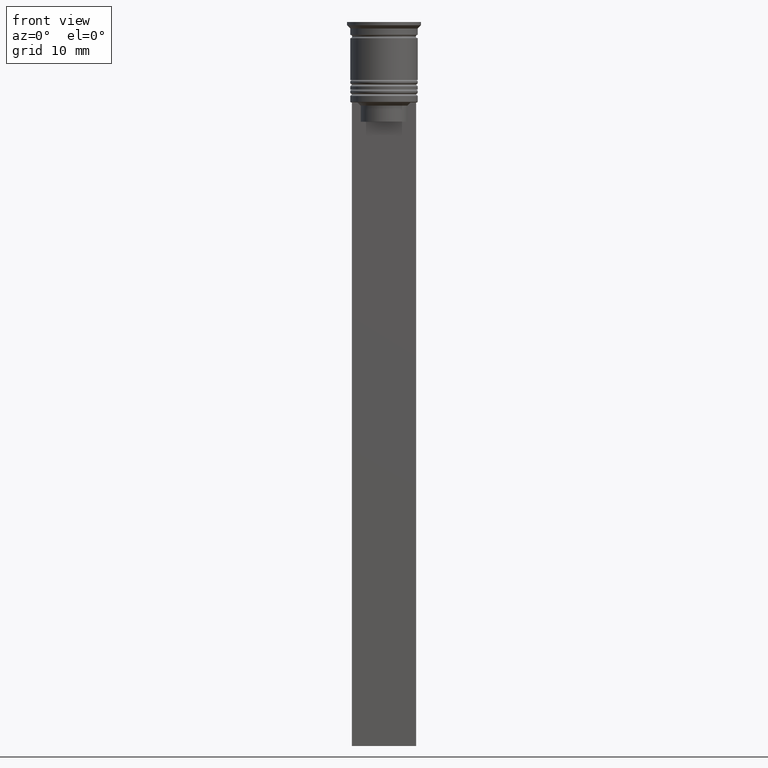
[diagram: clean part render]
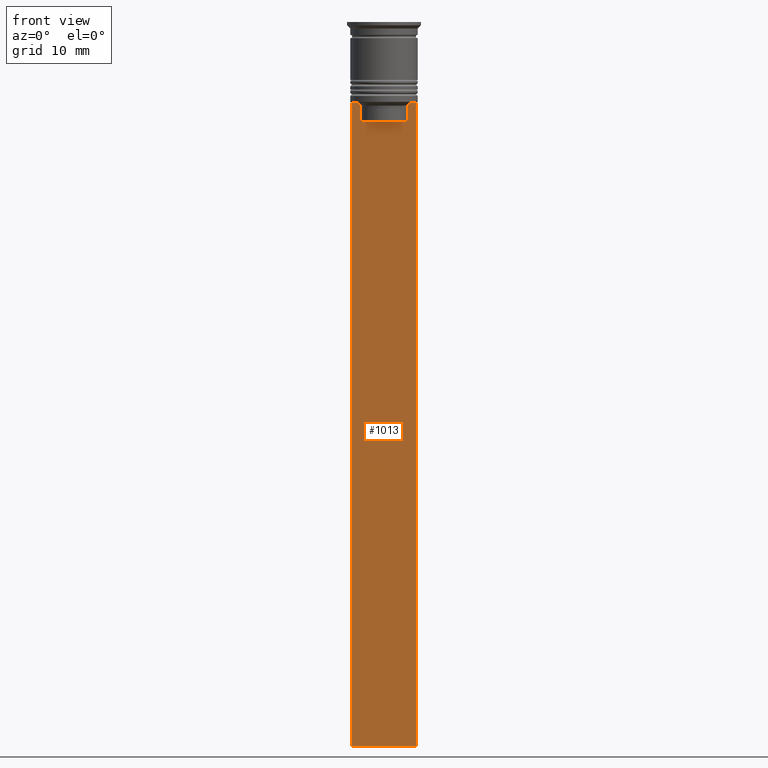
[diagram: same view with one face highlighted and labeled with its STEP entity id]
A machine part, front view. The second image highlights one B-rep face of the part: STEP entity #1013.
In plain terms, the highlighted planar face has unit normal (0, -1, -0).
Its self-contained STEP definition (entity closure, byte-faithful):
#28 = ORIENTED_EDGE ( 'NONE', *, *, #244, .F. ) ;
#42 = CARTESIAN_POINT ( 'NONE',  ( -3.951794205566887985, -0.5000000000000008882, -12.66675159355373914 ) ) ;
#55 = CARTESIAN_POINT ( 'NONE',  ( -4.119769411022908834, -0.5000000000000008882, -12.50000000000000000 ) ) ;
#144 = VERTEX_POINT ( 'NONE', #1088 ) ;
#150 = DIRECTION ( 'NONE',  ( 0.000000000000000000, 0.000000000000000000, -1.000000000000000000 ) ) ;
#169 = ORIENTED_EDGE ( 'NONE', *, *, #1651, .F. ) ;
#172 = CARTESIAN_POINT ( 'NONE',  ( 5.000000000000000000, -0.5000000000000008882, -112.5000000000000000 ) ) ;
#178 = DIRECTION ( 'NONE',  ( 1.000000000000000000, 0.000000000000000000, 0.000000000000000000 ) ) ;
#187 = LINE ( 'NONE', #1621, #1868 ) ;
#188 = CARTESIAN_POINT ( 'NONE',  ( 3.615591237958188042, -0.5000000000000008882, -13.00000000000000178 ) ) ;
#195 = CARTESIAN_POINT ( 'NONE',  ( -3.783746449387932476, -0.5000000000000008882, -12.83342999751715752 ) ) ;
#219 = LINE ( 'NONE', #789, #1134 ) ;
#229 = CARTESIAN_POINT ( 'NONE',  ( 4.119769411022908834, -0.5000000000000008882, -12.50000000000000000 ) ) ;
#232 = CARTESIAN_POINT ( 'NONE',  ( 5.000000000000000000, -0.5000000000000008882, -12.50000000000000000 ) ) ;
#242 = DIRECTION ( 'NONE',  ( 1.000000000000000000, 0.000000000000000000, 0.000000000000000000 ) ) ;
#244 = EDGE_CURVE ( 'NONE', #1767, #1297, #219, .T. ) ;
#249 = CARTESIAN_POINT ( 'NONE',  ( -4.119769411022908834, -0.5000000000000008882, -12.50000000000000000 ) ) ;
#253 = DIRECTION ( 'NONE',  ( 0.000000000000000000, 0.000000000000000000, -1.000000000000000000 ) ) ;
#258 = CARTESIAN_POINT ( 'NONE',  ( 5.000000000000000000, -0.5000000000000008882, -12.50000000000000000 ) ) ;
#263 = ORIENTED_EDGE ( 'NONE', *, *, #1837, .F. ) ;
#330 = LINE ( 'NONE', #172, #650 ) ;
#333 = PLANE ( 'NONE',  #838 ) ;
#344 = DIRECTION ( 'NONE',  ( 0.000000000000000000, 0.000000000000000000, -1.000000000000000000 ) ) ;
#351 = VECTOR ( 'NONE', #748, 1000.000000000000000 ) ;
#389 = CARTESIAN_POINT ( 'NONE',  ( 4.119769411022908834, -0.5000000000000008882, -12.50000000000000000 ) ) ;
#391 = VECTOR ( 'NONE', #242, 1000.000000000000000 ) ;
#430 = VECTOR ( 'NONE', #344, 1000.000000000000000 ) ;
#522 = EDGE_CURVE ( 'NONE', #672, #1757, #678, .T. ) ;
#638 = LINE ( 'NONE', #258, #1070 ) ;
#650 = VECTOR ( 'NONE', #856, 1000.000000000000000 ) ;
#655 = ORIENTED_EDGE ( 'NONE', *, *, #1017, .F. ) ;
#672 = VERTEX_POINT ( 'NONE', #232 ) ;
#674 = CARTESIAN_POINT ( 'NONE',  ( -3.615591237958188486, -0.5000000000000008882, -15.50000000000000000 ) ) ;
#675 = VERTEX_POINT ( 'NONE', #249 ) ;
#678 = LINE ( 'NONE', #1971, #430 ) ;
#691 = DIRECTION ( 'NONE',  ( 0.000000000000000000, 0.000000000000000000, -1.000000000000000000 ) ) ;
#694 = VERTEX_POINT ( 'NONE', #939 ) ;
#748 = DIRECTION ( 'NONE',  ( -0.000000000000000000, -0.000000000000000000, 1.000000000000000000 ) ) ;
#789 = CARTESIAN_POINT ( 'NONE',  ( -3.615591237958188042, -0.5000000000000008882, 0.000000000000000000 ) ) ;
#822 = ORIENTED_EDGE ( 'NONE', *, *, #2334, .F. ) ;
#838 = AXIS2_PLACEMENT_3D ( 'NONE', #1052, #2324, #691 ) ;
#856 = DIRECTION ( 'NONE',  ( -1.000000000000000000, 0.000000000000000000, 0.000000000000000000 ) ) ;
#868 = CARTESIAN_POINT ( 'NONE',  ( -4.999999999999999112, -0.5000000000000008882, -2.450124378879110054 ) ) ;
#919 = CARTESIAN_POINT ( 'NONE',  ( -3.615591237958188042, -0.5000000000000008882, -13.00000000000000178 ) ) ;
#925 = CARTESIAN_POINT ( 'NONE',  ( 3.951794168112528816, -0.5000000000000008882, -12.66675163073525745 ) ) ;
#939 = CARTESIAN_POINT ( 'NONE',  ( -4.999999999999999112, -0.5000000000000008882, -12.50000000000000000 ) ) ;
#970 = CARTESIAN_POINT ( 'NONE',  ( 3.783746406711540278, -0.5000000000000008882, -12.83343003979123509 ) ) ;
#986 = B_SPLINE_CURVE_WITH_KNOTS ( 'NONE', 3,
 ( #1650, #970, #925, #389 ),
 .UNSPECIFIED., .F., .F.,
 ( 4, 4 ),
 ( 0.01745179617248909451, 0.01816207215777257411 ),
 .UNSPECIFIED. ) ;
#1002 = EDGE_CURVE ( 'NONE', #1297, #2195, #187, .T. ) ;
#1013 = ADVANCED_FACE ( 'NONE', ( #1968 ), #333, .T. ) ;
#1017 = EDGE_CURVE ( 'NONE', #2195, #2207, #1468, .T. ) ;
#1052 = CARTESIAN_POINT ( 'NONE',  ( 5.000000000000000000, -0.5000000000000008882, -2.450124378879110054 ) ) ;
#1070 = VECTOR ( 'NONE', #1383, 1000.000000000000000 ) ;
#1088 = CARTESIAN_POINT ( 'NONE',  ( -4.999999999999999112, -0.5000000000000008882, -112.5000000000000000 ) ) ;
#1092 = CARTESIAN_POINT ( 'NONE',  ( 3.615591237958188042, -0.5000000000000008882, 0.000000000000000000 ) ) ;
#1112 = ORIENTED_EDGE ( 'NONE', *, *, #1002, .F. ) ;
#1129 = LINE ( 'NONE', #1726, #391 ) ;
#1134 = VECTOR ( 'NONE', #253, 1000.000000000000000 ) ;
#1151 = EDGE_LOOP ( 'NONE', ( #1418, #169, #1280, #263, #1808, #1200, #822, #655, #1112, #28 ) ) ;
#1200 = ORIENTED_EDGE ( 'NONE', *, *, #1243, .F. ) ;
#1243 = EDGE_CURVE ( 'NONE', #1567, #672, #638, .T. ) ;
#1263 = LINE ( 'NONE', #868, #2095 ) ;
#1280 = ORIENTED_EDGE ( 'NONE', *, *, #1322, .T. ) ;
#1297 = VERTEX_POINT ( 'NONE', #674 ) ;
#1322 = EDGE_CURVE ( 'NONE', #694, #144, #1263, .T. ) ;
#1370 = CARTESIAN_POINT ( 'NONE',  ( 5.000000000000000000, -0.5000000000000008882, -112.5000000000000000 ) ) ;
#1383 = DIRECTION ( 'NONE',  ( 1.000000000000000000, 0.000000000000000000, 0.000000000000000000 ) ) ;
#1418 = ORIENTED_EDGE ( 'NONE', *, *, #1594, .F. ) ;
#1438 = CARTESIAN_POINT ( 'NONE',  ( 3.615591237958188486, -0.5000000000000008882, -15.50000000000000000 ) ) ;
#1468 = LINE ( 'NONE', #1092, #351 ) ;
#1567 = VERTEX_POINT ( 'NONE', #229 ) ;
#1594 = EDGE_CURVE ( 'NONE', #675, #1767, #1662, .T. ) ;
#1621 = CARTESIAN_POINT ( 'NONE',  ( 0.000000000000000000, -0.5000000000000008882, -15.50000000000000000 ) ) ;
#1650 = CARTESIAN_POINT ( 'NONE',  ( 3.615591237958188042, -0.5000000000000008882, -13.00000000000000178 ) ) ;
#1651 = EDGE_CURVE ( 'NONE', #694, #675, #1129, .T. ) ;
#1662 = B_SPLINE_CURVE_WITH_KNOTS ( 'NONE', 3,
 ( #55, #42, #195, #919 ),
 .UNSPECIFIED., .F., .F.,
 ( 4, 4 ),
 ( 0.007067514914986629433, 0.007777582239375527978 ),
 .UNSPECIFIED. ) ;
#1726 = CARTESIAN_POINT ( 'NONE',  ( 5.000000000000000000, -0.5000000000000008882, -12.50000000000000000 ) ) ;
#1757 = VERTEX_POINT ( 'NONE', #1370 ) ;
#1767 = VERTEX_POINT ( 'NONE', #2076 ) ;
#1808 = ORIENTED_EDGE ( 'NONE', *, *, #522, .F. ) ;
#1837 = EDGE_CURVE ( 'NONE', #1757, #144, #330, .T. ) ;
#1868 = VECTOR ( 'NONE', #178, 1000.000000000000000 ) ;
#1968 = FACE_OUTER_BOUND ( 'NONE', #1151, .T. ) ;
#1971 = CARTESIAN_POINT ( 'NONE',  ( 5.000000000000000000, -0.5000000000000008882, -2.450124378879110054 ) ) ;
#2076 = CARTESIAN_POINT ( 'NONE',  ( -3.615591237958188042, -0.5000000000000008882, -13.00000000000000178 ) ) ;
#2095 = VECTOR ( 'NONE', #150, 1000.000000000000000 ) ;
#2195 = VERTEX_POINT ( 'NONE', #1438 ) ;
#2207 = VERTEX_POINT ( 'NONE', #188 ) ;
#2324 = DIRECTION ( 'NONE',  ( 0.000000000000000000, -1.000000000000000000, -0.000000000000000000 ) ) ;
#2334 = EDGE_CURVE ( 'NONE', #2207, #1567, #986, .T. ) ;